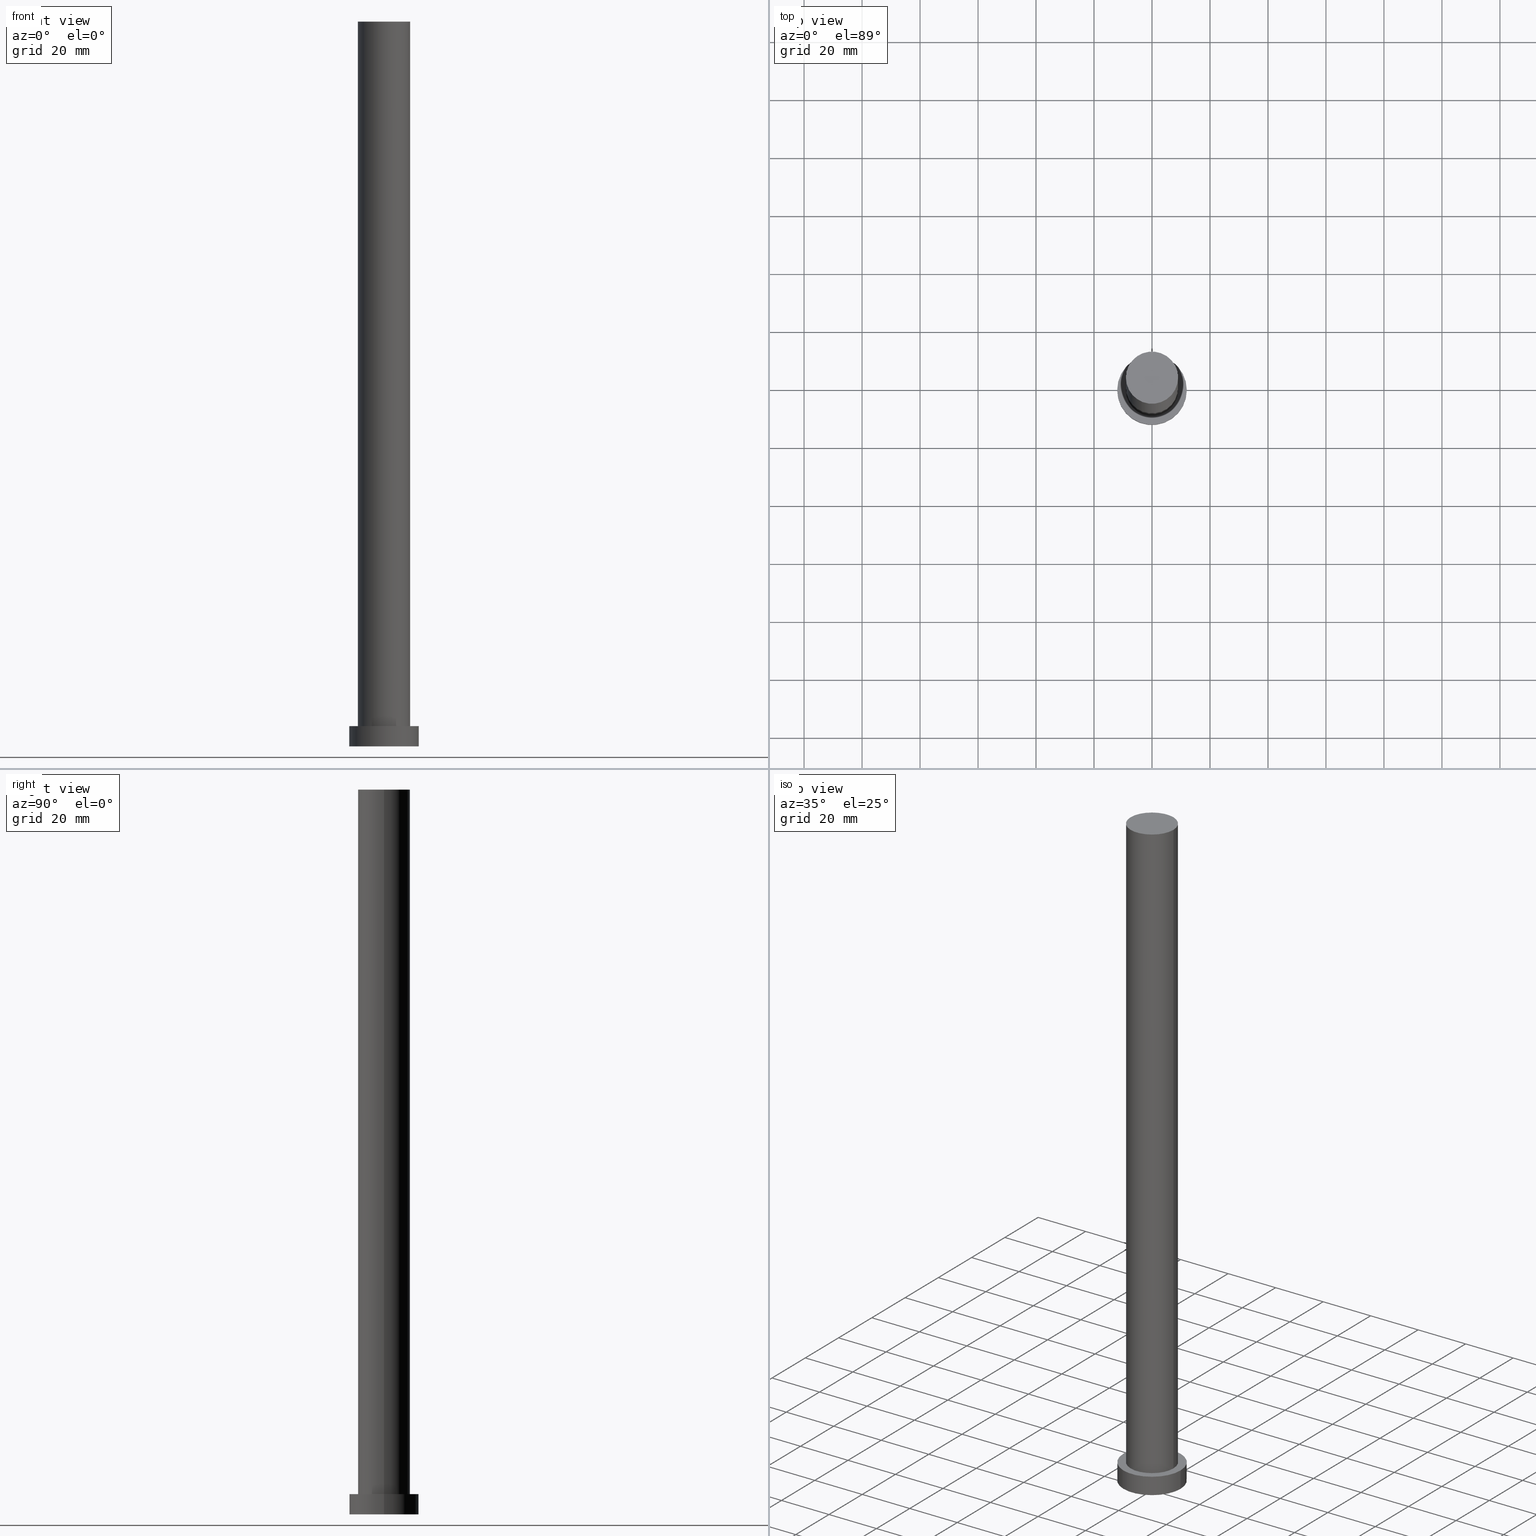
[diagram: canonical four-view strip — front | top / right | iso, engineering-drawing reading convention]
A machine part, canonical four-view strip (front | top / right | iso — engineering-drawing reading convention). The complete STEP part file that produces these views, byte-faithful:
ISO-10303-21;
HEADER;
FILE_DESCRIPTION (( 'STEP AP203' ),
    '1' );
FILE_NAME ('8a10.STEP',
    '2023-02-13T07:35:48',
    ( '' ),
    ( '' ),
    'SwSTEP 2.0',
    'SolidWorks 2019',
    '' );
FILE_SCHEMA (( 'CONFIG_CONTROL_DESIGN' ));
ENDSEC;

DATA;
#1 = CIRCLE ( 'NONE', #146, 9.000000000000000000 ) ;
#2 = CARTESIAN_POINT ( 'NONE',  ( 0.000000000000000000, 0.000000000000000000, 250.0000000000000000 ) ) ;
#3 = CARTESIAN_POINT ( 'NONE',  ( 9.000000000000000000, 1.102182119232617714E-15, 7.000000000000000000 ) ) ;
#4 = CIRCLE ( 'NONE', #73, 12.00000000000000178 ) ;
#5 = CARTESIAN_POINT ( 'NONE',  ( 0.000000000000000000, 0.000000000000000000, 7.000000000000000000 ) ) ;
#6 = AXIS2_PLACEMENT_3D ( 'NONE', #238, #138, #135 ) ;
#7 = COORDINATED_UNIVERSAL_TIME_OFFSET ( 1, 0, .AHEAD. ) ;
#8 = VECTOR ( 'NONE', #237, 1000.000000000000000 ) ;
#9 = COORDINATED_UNIVERSAL_TIME_OFFSET ( 1, 0, .AHEAD. ) ;
#10 = PRODUCT_RELATED_PRODUCT_CATEGORY ( 'detail', '', ( #175 ) ) ;
#11 = CALENDAR_DATE ( 2023, 13, 2 ) ;
#12 = ORIENTED_EDGE ( 'NONE', *, *, #199, .F. ) ;
#13 = CARTESIAN_POINT ( 'NONE',  ( -12.00000000000000178, 0.000000000000000000, 0.000000000000000000 ) ) ;
#14 = ORIENTED_EDGE ( 'NONE', *, *, #249, .T. ) ;
#15 = ORIENTED_EDGE ( 'NONE', *, *, #231, .T. ) ;
#16 = AXIS2_PLACEMENT_3D ( 'NONE', #47, #44, #86 ) ;
#17 = EDGE_CURVE ( 'NONE', #89, #27, #205, .T. ) ;
#18 = DIRECTION ( 'NONE',  ( 1.000000000000000000, 0.000000000000000000, -0.000000000000000000 ) ) ;
#19 = CYLINDRICAL_SURFACE ( 'NONE', #82, 9.000000000000000000 ) ;
#20 = DIRECTION ( 'NONE',  ( 0.000000000000000000, 0.000000000000000000, 1.000000000000000000 ) ) ;
#21 = CARTESIAN_POINT ( 'NONE',  ( 0.000000000000000000, 0.000000000000000000, 250.0000000000000000 ) ) ;
#22 = DIRECTION ( 'NONE',  ( 1.000000000000000000, 0.000000000000000000, -0.000000000000000000 ) ) ;
#23 = CLOSED_SHELL ( 'NONE', ( #182, #88, #206, #56, #72, #45, #38 ) ) ;
#24 = CALENDAR_DATE ( 2023, 13, 2 ) ;
#25 = APPROVAL_ROLE ( '' ) ;
#26 = DIRECTION ( 'NONE',  ( 1.000000000000000000, 0.000000000000000000, 0.000000000000000000 ) ) ;
#27 = VERTEX_POINT ( 'NONE', #80 ) ;
#28 = CIRCLE ( 'NONE', #91, 9.000000000000000000 ) ;
#29 = EDGE_LOOP ( 'NONE', ( #164, #107 ) ) ;
#30 = PERSON_AND_ORGANIZATION_ROLE ( 'classification_officer' ) ;
#31 = ORGANIZATION ( 'NEUR�EN�', 'NEUR�EN�', '' ) ;
#32 = CC_DESIGN_DATE_AND_TIME_ASSIGNMENT ( #131, #109, ( #106 ) ) ;
#33 = PERSON_AND_ORGANIZATION ( #136, #31 ) ;
#34 = EDGE_LOOP ( 'NONE', ( #129, #166, #52, #167 ) ) ;
#35 = DIRECTION ( 'NONE',  ( -0.000000000000000000, -0.000000000000000000, -1.000000000000000000 ) ) ;
#36 = DIRECTION ( 'NONE',  ( 0.000000000000000000, 0.000000000000000000, 1.000000000000000000 ) ) ;
#37 = CARTESIAN_POINT ( 'NONE',  ( 0.000000000000000000, 0.000000000000000000, 0.000000000000000000 ) ) ;
#38 = ADVANCED_FACE ( 'NONE', ( #157 ), #76, .T. ) ;
#39 = VECTOR ( 'NONE', #144, 1000.000000000000000 ) ;
#40 = DIRECTION ( 'NONE',  ( 0.000000000000000000, 0.000000000000000000, 1.000000000000000000 ) ) ;
#41 = CARTESIAN_POINT ( 'NONE',  ( -9.000000000000000000, 0.000000000000000000, 7.000000000000000000 ) ) ;
#42 = PERSON_AND_ORGANIZATION ( #136, #31 ) ;
#43 = CC_DESIGN_APPROVAL ( #169, ( #223 ) ) ;
#44 = DIRECTION ( 'NONE',  ( -0.000000000000000000, -0.000000000000000000, -1.000000000000000000 ) ) ;
#45 = ADVANCED_FACE ( 'NONE', ( #83 ), #121, .T. ) ;
#46 =( LENGTH_UNIT ( ) NAMED_UNIT ( * ) SI_UNIT ( .MILLI., .METRE. ) );
#47 = CARTESIAN_POINT ( 'NONE',  ( 0.000000000000000000, 0.000000000000000000, 7.000000000000000000 ) ) ;
#48 = CALENDAR_DATE ( 2023, 13, 2 ) ;
#49 = CC_DESIGN_PERSON_AND_ORGANIZATION_ASSIGNMENT ( #71, #51, ( #223 ) ) ;
#50 = APPLICATION_CONTEXT ( 'configuration controlled 3d designs of mechanical parts and assemblies' ) ;
#51 = PERSON_AND_ORGANIZATION_ROLE ( 'creator' ) ;
#52 = ORIENTED_EDGE ( 'NONE', *, *, #171, .T. ) ;
#53 = DIRECTION ( 'NONE',  ( -0.000000000000000000, -0.000000000000000000, -1.000000000000000000 ) ) ;
#54 = CARTESIAN_POINT ( 'NONE',  ( 0.000000000000000000, 0.000000000000000000, 250.0000000000000000 ) ) ;
#55 = DIRECTION ( 'NONE',  ( 0.000000000000000000, 0.000000000000000000, 1.000000000000000000 ) ) ;
#56 = ADVANCED_FACE ( 'NONE', ( #134, #197 ), #155, .T. ) ;
#57 = PRODUCT_DEFINITION_SHAPE ( 'NONE', 'NONE',  #213 ) ;
#58 = CARTESIAN_POINT ( 'NONE',  ( 0.000000000000000000, 0.000000000000000000, 7.000000000000000000 ) ) ;
#59 = APPROVAL_PERSON_ORGANIZATION ( #140, #253, #25 ) ;
#60 = ORIENTED_EDGE ( 'NONE', *, *, #231, .F. ) ;
#61 =( NAMED_UNIT ( * ) PLANE_ANGLE_UNIT ( ) SI_UNIT ( $, .RADIAN. ) );
#62 = PERSON_AND_ORGANIZATION_ROLE ( 'design_owner' ) ;
#63 = APPLICATION_CONTEXT ( 'configuration controlled 3d designs of mechanical parts and assemblies' ) ;
#64 = DATE_TIME_ROLE ( 'creation_date' ) ;
#65 = VERTEX_POINT ( 'NONE', #137 ) ;
#66 = LINE ( 'NONE', #226, #39 ) ;
#67 = ORIENTED_EDGE ( 'NONE', *, *, #17, .T. ) ;
#68 = PERSON_AND_ORGANIZATION ( #136, #31 ) ;
#69 = CC_DESIGN_APPROVAL ( #139, ( #106 ) ) ;
#70 = ORIENTED_EDGE ( 'NONE', *, *, #249, .F. ) ;
#71 = PERSON_AND_ORGANIZATION ( #136, #31 ) ;
#72 = ADVANCED_FACE ( 'NONE', ( #118 ), #79, .F. ) ;
#73 = AXIS2_PLACEMENT_3D ( 'NONE', #5, #160, #156 ) ;
#74 = APPROVAL_DATE_TIME ( #103, #169 ) ;
#75 = DESIGN_CONTEXT ( 'detailed design', #63, 'design' ) ;
#76 = PLANE ( 'NONE',  #252 ) ;
#77 = FACE_OUTER_BOUND ( 'NONE', #211, .T. ) ;
#78 = LOCAL_TIME ( 8, 35, 48.00000000000000000, #248 ) ;
#79 = PLANE ( 'NONE',  #178 ) ;
#80 = CARTESIAN_POINT ( 'NONE',  ( 9.000000000000000000, 1.102182119232617714E-15, 250.0000000000000000 ) ) ;
#81 = CIRCLE ( 'NONE', #227, 12.00000000000000178 ) ;
#82 = AXIS2_PLACEMENT_3D ( 'NONE', #99, #174, #153 ) ;
#83 = FACE_OUTER_BOUND ( 'NONE', #188, .T. ) ;
#84 = PERSON_AND_ORGANIZATION ( #136, #31 ) ;
#85 = DIRECTION ( 'NONE',  ( 0.000000000000000000, 0.000000000000000000, 1.000000000000000000 ) ) ;
#86 = DIRECTION ( 'NONE',  ( -1.000000000000000000, 0.000000000000000000, 0.000000000000000000 ) ) ;
#87 = ORIENTED_EDGE ( 'NONE', *, *, #192, .T. ) ;
#88 = ADVANCED_FACE ( 'NONE', ( #122 ), #235, .T. ) ;
#89 = VERTEX_POINT ( 'NONE', #132 ) ;
#90 = ORIENTED_EDGE ( 'NONE', *, *, #199, .T. ) ;
#91 = AXIS2_PLACEMENT_3D ( 'NONE', #184, #222, #102 ) ;
#92 = EDGE_LOOP ( 'NONE', ( #70, #229 ) ) ;
#93 = APPROVAL_ROLE ( '' ) ;
#94 = CC_DESIGN_APPROVAL ( #253, ( #213 ) ) ;
#95 = DIRECTION ( 'NONE',  ( 0.000000000000000000, 0.000000000000000000, 1.000000000000000000 ) ) ;
#96 = CARTESIAN_POINT ( 'NONE',  ( -9.000000000000000000, 0.000000000000000000, 250.0000000000000000 ) ) ;
#97 = CC_DESIGN_DATE_AND_TIME_ASSIGNMENT ( #242, #64, ( #213 ) ) ;
#98 = DIRECTION ( 'NONE',  ( 1.000000000000000000, 0.000000000000000000, 0.000000000000000000 ) ) ;
#99 = CARTESIAN_POINT ( 'NONE',  ( 0.000000000000000000, 0.000000000000000000, 250.0000000000000000 ) ) ;
#100 = DIRECTION ( 'NONE',  ( -1.000000000000000000, 0.000000000000000000, 0.000000000000000000 ) ) ;
#101 = CIRCLE ( 'NONE', #115, 12.00000000000000178 ) ;
#102 = DIRECTION ( 'NONE',  ( 1.000000000000000000, 0.000000000000000000, 0.000000000000000000 ) ) ;
#103 = DATE_AND_TIME ( #243, #187 ) ;
#104 = CARTESIAN_POINT ( 'NONE',  ( 0.000000000000000000, 0.000000000000000000, 0.000000000000000000 ) ) ;
#105 = CC_DESIGN_PERSON_AND_ORGANIZATION_ASSIGNMENT ( #33, #30, ( #106 ) ) ;
#106 = SECURITY_CLASSIFICATION ( '', '', #230 ) ;
#107 = ORIENTED_EDGE ( 'NONE', *, *, #191, .T. ) ;
#108 = COORDINATED_UNIVERSAL_TIME_OFFSET ( 1, 0, .AHEAD. ) ;
#109 = DATE_TIME_ROLE ( 'classification_date' ) ;
#110 = ORIENTED_EDGE ( 'NONE', *, *, #212, .F. ) ;
#111 = APPROVAL_PERSON_ORGANIZATION ( #161, #169, #183 ) ;
#112 = PERSON_AND_ORGANIZATION ( #136, #31 ) ;
#113 = APPROVAL_STATUS ( 'not_yet_approved' ) ;
#114 = EDGE_CURVE ( 'NONE', #244, #193, #101, .T. ) ;
#115 = AXIS2_PLACEMENT_3D ( 'NONE', #58, #218, #195 ) ;
#116 = ORIENTED_EDGE ( 'NONE', *, *, #114, .F. ) ;
#117 = LINE ( 'NONE', #96, #201 ) ;
#118 = FACE_OUTER_BOUND ( 'NONE', #92, .T. ) ;
#119 = CARTESIAN_POINT ( 'NONE',  ( 0.000000000000000000, 0.000000000000000000, 7.000000000000000000 ) ) ;
#120 = VECTOR ( 'NONE', #35, 1000.000000000000000 ) ;
#121 = CYLINDRICAL_SURFACE ( 'NONE', #158, 9.000000000000000000 ) ;
#122 = FACE_OUTER_BOUND ( 'NONE', #34, .T. ) ;
#123 = APPROVAL_STATUS ( 'not_yet_approved' ) ;
#124 = AXIS2_PLACEMENT_3D ( 'NONE', #163, #128, #26 ) ;
#125 = APPROVAL_PERSON_ORGANIZATION ( #68, #139, #93 ) ;
#126 = DIRECTION ( 'NONE',  ( 1.000000000000000000, 0.000000000000000000, 0.000000000000000000 ) ) ;
#127 = MANIFOLD_SOLID_BREP ( 'P�idat vysunut�m3', #23 ) ;
#128 = DIRECTION ( 'NONE',  ( 0.000000000000000000, 0.000000000000000000, 1.000000000000000000 ) ) ;
#129 = ORIENTED_EDGE ( 'NONE', *, *, #191, .F. ) ;
#130 = CALENDAR_DATE ( 2023, 13, 2 ) ;
#131 = DATE_AND_TIME ( #48, #133 ) ;
#132 = CARTESIAN_POINT ( 'NONE',  ( -9.000000000000000000, 0.000000000000000000, 250.0000000000000000 ) ) ;
#133 = LOCAL_TIME ( 8, 35, 48.00000000000000000, #232 ) ;
#134 = FACE_BOUND ( 'NONE', #186, .T. ) ;
#135 = DIRECTION ( 'NONE',  ( -1.000000000000000000, 0.000000000000000000, 0.000000000000000000 ) ) ;
#136 = PERSON ( 'NEUR�EN�', 'NEUR�EN�', 'NEUR�EN�', ('NEUR�EN�'), ('NEUR�EN�'), ('NEUR�EN�') ) ;
#137 = CARTESIAN_POINT ( 'NONE',  ( 12.00000000000000178, 1.469576158976824144E-15, 0.000000000000000000 ) ) ;
#138 = DIRECTION ( 'NONE',  ( -0.000000000000000000, -0.000000000000000000, -1.000000000000000000 ) ) ;
#139 = APPROVAL ( #113, 'NEUR�EN�' ) ;
#140 = PERSON_AND_ORGANIZATION ( #136, #31 ) ;
#141 = CARTESIAN_POINT ( 'NONE',  ( 0.000000000000000000, 0.000000000000000000, 7.000000000000000000 ) ) ;
#142 = ORIENTED_EDGE ( 'NONE', *, *, #150, .T. ) ;
#143 = CIRCLE ( 'NONE', #179, 9.000000000000000000 ) ;
#144 = DIRECTION ( 'NONE',  ( -0.000000000000000000, -0.000000000000000000, -1.000000000000000000 ) ) ;
#145 = VERTEX_POINT ( 'NONE', #3 ) ;
#146 = AXIS2_PLACEMENT_3D ( 'NONE', #141, #85, #126 ) ;
#147 = ORIENTED_EDGE ( 'NONE', *, *, #150, .F. ) ;
#148 = SHAPE_DEFINITION_REPRESENTATION ( #57, #245 ) ;
#149 = VERTEX_POINT ( 'NONE', #41 ) ;
#150 = EDGE_CURVE ( 'NONE', #27, #89, #143, .T. ) ;
#151 = UNCERTAINTY_MEASURE_WITH_UNIT (LENGTH_MEASURE( 1.000000000000000082E-05 ), #46, 'distance_accuracy_value', 'NONE');
#152 = CC_DESIGN_PERSON_AND_ORGANIZATION_ASSIGNMENT ( #84, #200, ( #213 ) ) ;
#153 = DIRECTION ( 'NONE',  ( -1.000000000000000000, 0.000000000000000000, 0.000000000000000000 ) ) ;
#154 = AXIS2_PLACEMENT_3D ( 'NONE', #2, #36, #172 ) ;
#155 = PLANE ( 'NONE',  #239 ) ;
#156 = DIRECTION ( 'NONE',  ( 1.000000000000000000, 0.000000000000000000, 0.000000000000000000 ) ) ;
#157 = FACE_OUTER_BOUND ( 'NONE', #247, .T. ) ;
#158 = AXIS2_PLACEMENT_3D ( 'NONE', #216, #53, #100 ) ;
#159 = CC_DESIGN_PERSON_AND_ORGANIZATION_ASSIGNMENT ( #42, #62, ( #175 ) ) ;
#160 = DIRECTION ( 'NONE',  ( 0.000000000000000000, 0.000000000000000000, 1.000000000000000000 ) ) ;
#161 = PERSON_AND_ORGANIZATION ( #136, #31 ) ;
#162 = MECHANICAL_CONTEXT ( 'NONE', #50, 'mechanical' ) ;
#163 = CARTESIAN_POINT ( 'NONE',  ( 0.000000000000000000, 0.000000000000000000, 0.000000000000000000 ) ) ;
#164 = ORIENTED_EDGE ( 'NONE', *, *, #114, .T. ) ;
#165 = DATE_AND_TIME ( #11, #181 ) ;
#166 = ORIENTED_EDGE ( 'NONE', *, *, #212, .T. ) ;
#167 = ORIENTED_EDGE ( 'NONE', *, *, #192, .F. ) ;
#168 = ORIENTED_EDGE ( 'NONE', *, *, #240, .T. ) ;
#169 = APPROVAL ( #123, 'NEUR�EN�' ) ;
#170 = DATE_AND_TIME ( #130, #219 ) ;
#171 = EDGE_CURVE ( 'NONE', #65, #250, #81, .T. ) ;
#172 = DIRECTION ( 'NONE',  ( 1.000000000000000000, 0.000000000000000000, 0.000000000000000000 ) ) ;
#173 = DIRECTION ( 'NONE',  ( 1.000000000000000000, 0.000000000000000000, -0.000000000000000000 ) ) ;
#174 = DIRECTION ( 'NONE',  ( -0.000000000000000000, -0.000000000000000000, -1.000000000000000000 ) ) ;
#175 = PRODUCT ( '8a10', '8a10', '', ( #162 ) ) ;
#176 = LINE ( 'NONE', #215, #120 ) ;
#177 = DIRECTION ( 'NONE',  ( 1.000000000000000000, 0.000000000000000000, 0.000000000000000000 ) ) ;
#178 = AXIS2_PLACEMENT_3D ( 'NONE', #194, #254, #22 ) ;
#179 = AXIS2_PLACEMENT_3D ( 'NONE', #21, #40, #177 ) ;
#180 = APPLICATION_PROTOCOL_DEFINITION ( 'international standard', 'config_control_design', 1994, #63 ) ;
#181 = LOCAL_TIME ( 8, 35, 48.00000000000000000, #7 ) ;
#182 = ADVANCED_FACE ( 'NONE', ( #220 ), #19, .T. ) ;
#183 = APPROVAL_ROLE ( '' ) ;
#184 = CARTESIAN_POINT ( 'NONE',  ( 0.000000000000000000, 0.000000000000000000, 7.000000000000000000 ) ) ;
#185 = APPLICATION_PROTOCOL_DEFINITION ( 'international standard', 'config_control_design', 1994, #50 ) ;
#186 = EDGE_LOOP ( 'NONE', ( #60, #207 ) ) ;
#187 = LOCAL_TIME ( 8, 35, 48.00000000000000000, #9 ) ;
#188 = EDGE_LOOP ( 'NONE', ( #225, #190, #90, #15 ) ) ;
#189 = APPROVAL_DATE_TIME ( #170, #139 ) ;
#190 = ORIENTED_EDGE ( 'NONE', *, *, #17, .F. ) ;
#191 = EDGE_CURVE ( 'NONE', #193, #244, #4, .T. ) ;
#192 = EDGE_CURVE ( 'NONE', #244, #250, #241, .T. ) ;
#193 = VERTEX_POINT ( 'NONE', #233 ) ;
#194 = CARTESIAN_POINT ( 'NONE',  ( 0.000000000000000000, 0.000000000000000000, 0.000000000000000000 ) ) ;
#195 = DIRECTION ( 'NONE',  ( 1.000000000000000000, 0.000000000000000000, 0.000000000000000000 ) ) ;
#196 = EDGE_CURVE ( 'NONE', #27, #145, #176, .T. ) ;
#197 = FACE_OUTER_BOUND ( 'NONE', #29, .T. ) ;
#198 = CARTESIAN_POINT ( 'NONE',  ( -12.00000000000000178, 0.000000000000000000, 7.000000000000000000 ) ) ;
#199 = EDGE_CURVE ( 'NONE', #89, #149, #117, .T. ) ;
#200 = PERSON_AND_ORGANIZATION_ROLE ( 'creator' ) ;
#201 = VECTOR ( 'NONE', #255, 1000.000000000000000 ) ;
#202 = DIRECTION ( 'NONE',  ( 0.000000000000000000, 0.000000000000000000, 1.000000000000000000 ) ) ;
#203 = DIRECTION ( 'NONE',  ( 1.000000000000000000, 0.000000000000000000, 0.000000000000000000 ) ) ;
#204 = ORIENTED_EDGE ( 'NONE', *, *, #196, .T. ) ;
#205 = CIRCLE ( 'NONE', #154, 9.000000000000000000 ) ;
#206 = ADVANCED_FACE ( 'NONE', ( #77 ), #228, .T. ) ;
#207 = ORIENTED_EDGE ( 'NONE', *, *, #240, .F. ) ;
#208 = AXIS2_PLACEMENT_3D ( 'NONE', #104, #202, #203 ) ;
#209 = CC_DESIGN_SECURITY_CLASSIFICATION ( #106, ( #223 ) ) ;
#210 = EDGE_LOOP ( 'NONE', ( #147, #204, #168, #12 ) ) ;
#211 = EDGE_LOOP ( 'NONE', ( #110, #116, #87, #14 ) ) ;
#212 = EDGE_CURVE ( 'NONE', #193, #65, #66, .T. ) ;
#213 = PRODUCT_DEFINITION ( 'NEZN�M�', '', #223, #75 ) ;
#214 =( GEOMETRIC_REPRESENTATION_CONTEXT ( 3 ) GLOBAL_UNCERTAINTY_ASSIGNED_CONTEXT ( ( #151 ) ) GLOBAL_UNIT_ASSIGNED_CONTEXT ( ( #46, #61, #221 ) ) REPRESENTATION_CONTEXT ( 'NONE', 'WORKASPACE' ) );
#215 = CARTESIAN_POINT ( 'NONE',  ( 9.000000000000000000, 1.102182119232617714E-15, 250.0000000000000000 ) ) ;
#216 = CARTESIAN_POINT ( 'NONE',  ( 0.000000000000000000, 0.000000000000000000, 250.0000000000000000 ) ) ;
#217 = CARTESIAN_POINT ( 'NONE',  ( -12.00000000000000178, 0.000000000000000000, 7.000000000000000000 ) ) ;
#218 = DIRECTION ( 'NONE',  ( 0.000000000000000000, 0.000000000000000000, 1.000000000000000000 ) ) ;
#219 = LOCAL_TIME ( 8, 35, 48.00000000000000000, #108 ) ;
#220 = FACE_OUTER_BOUND ( 'NONE', #210, .T. ) ;
#221 =( NAMED_UNIT ( * ) SI_UNIT ( $, .STERADIAN. ) SOLID_ANGLE_UNIT ( ) );
#222 = DIRECTION ( 'NONE',  ( 0.000000000000000000, 0.000000000000000000, 1.000000000000000000 ) ) ;
#223 = PRODUCT_DEFINITION_FORMATION_WITH_SPECIFIED_SOURCE ( 'LIBOVOLN�', '', #175, .NOT_KNOWN. ) ;
#224 = APPROVAL_STATUS ( 'not_yet_approved' ) ;
#225 = ORIENTED_EDGE ( 'NONE', *, *, #196, .F. ) ;
#226 = CARTESIAN_POINT ( 'NONE',  ( 12.00000000000000178, 1.469576158976824144E-15, 7.000000000000000000 ) ) ;
#227 = AXIS2_PLACEMENT_3D ( 'NONE', #37, #20, #98 ) ;
#228 = CYLINDRICAL_SURFACE ( 'NONE', #16, 12.00000000000000178 ) ;
#229 = ORIENTED_EDGE ( 'NONE', *, *, #171, .F. ) ;
#230 = SECURITY_CLASSIFICATION_LEVEL ( 'unclassified' ) ;
#231 = EDGE_CURVE ( 'NONE', #149, #145, #1, .T. ) ;
#232 = COORDINATED_UNIVERSAL_TIME_OFFSET ( 1, 0, .AHEAD. ) ;
#233 = CARTESIAN_POINT ( 'NONE',  ( 12.00000000000000178, 1.469576158976824144E-15, 7.000000000000000000 ) ) ;
#234 = CIRCLE ( 'NONE', #124, 12.00000000000000178 ) ;
#235 = CYLINDRICAL_SURFACE ( 'NONE', #6, 12.00000000000000178 ) ;
#236 = CC_DESIGN_PERSON_AND_ORGANIZATION_ASSIGNMENT ( #112, #251, ( #223 ) ) ;
#237 = DIRECTION ( 'NONE',  ( -0.000000000000000000, -0.000000000000000000, -1.000000000000000000 ) ) ;
#238 = CARTESIAN_POINT ( 'NONE',  ( 0.000000000000000000, 0.000000000000000000, 7.000000000000000000 ) ) ;
#239 = AXIS2_PLACEMENT_3D ( 'NONE', #119, #55, #18 ) ;
#240 = EDGE_CURVE ( 'NONE', #145, #149, #28, .T. ) ;
#241 = LINE ( 'NONE', #217, #8 ) ;
#242 = DATE_AND_TIME ( #24, #78 ) ;
#243 = CALENDAR_DATE ( 2023, 13, 2 ) ;
#244 = VERTEX_POINT ( 'NONE', #198 ) ;
#245 = ADVANCED_BREP_SHAPE_REPRESENTATION ( '8a10', ( #127, #208 ), #214 ) ;
#246 = APPROVAL_DATE_TIME ( #165, #253 ) ;
#247 = EDGE_LOOP ( 'NONE', ( #67, #142 ) ) ;
#248 = COORDINATED_UNIVERSAL_TIME_OFFSET ( 1, 0, .AHEAD. ) ;
#249 = EDGE_CURVE ( 'NONE', #250, #65, #234, .T. ) ;
#250 = VERTEX_POINT ( 'NONE', #13 ) ;
#251 = PERSON_AND_ORGANIZATION_ROLE ( 'design_supplier' ) ;
#252 = AXIS2_PLACEMENT_3D ( 'NONE', #54, #95, #173 ) ;
#253 = APPROVAL ( #224, 'NEUR�EN�' ) ;
#254 = DIRECTION ( 'NONE',  ( 0.000000000000000000, 0.000000000000000000, 1.000000000000000000 ) ) ;
#255 = DIRECTION ( 'NONE',  ( -0.000000000000000000, -0.000000000000000000, -1.000000000000000000 ) ) ;
ENDSEC;
END-ISO-10303-21;
